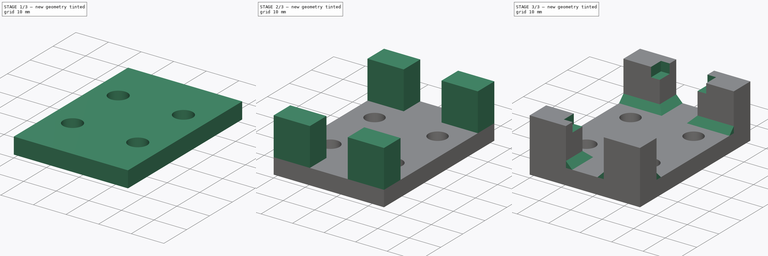
[diagram: build sequence overview — one tinted view per stage of 3, left to right]
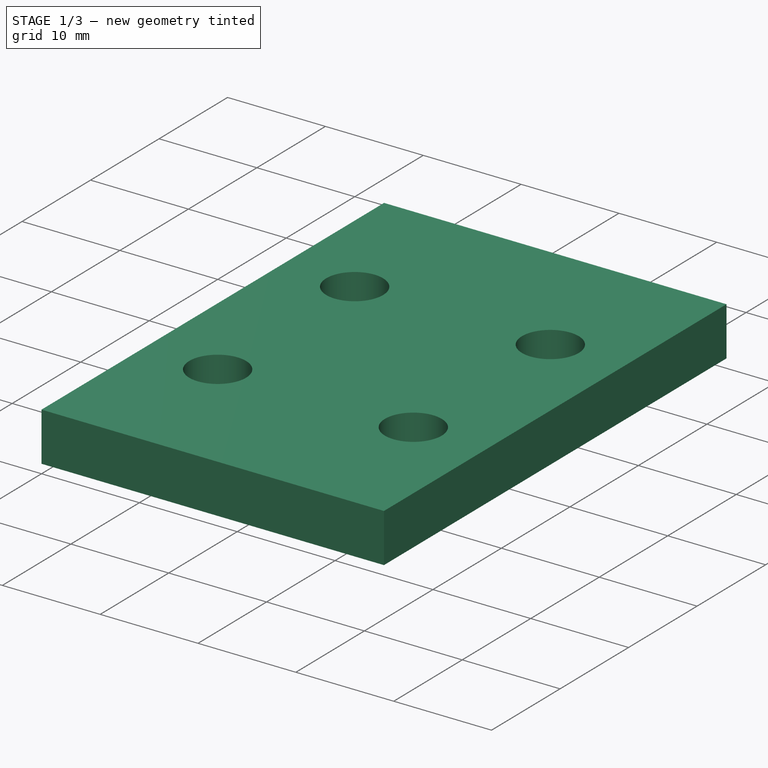
[diagram: stage 1 of 3 — iso view after this stage's code; geometry added in this stage tinted green]
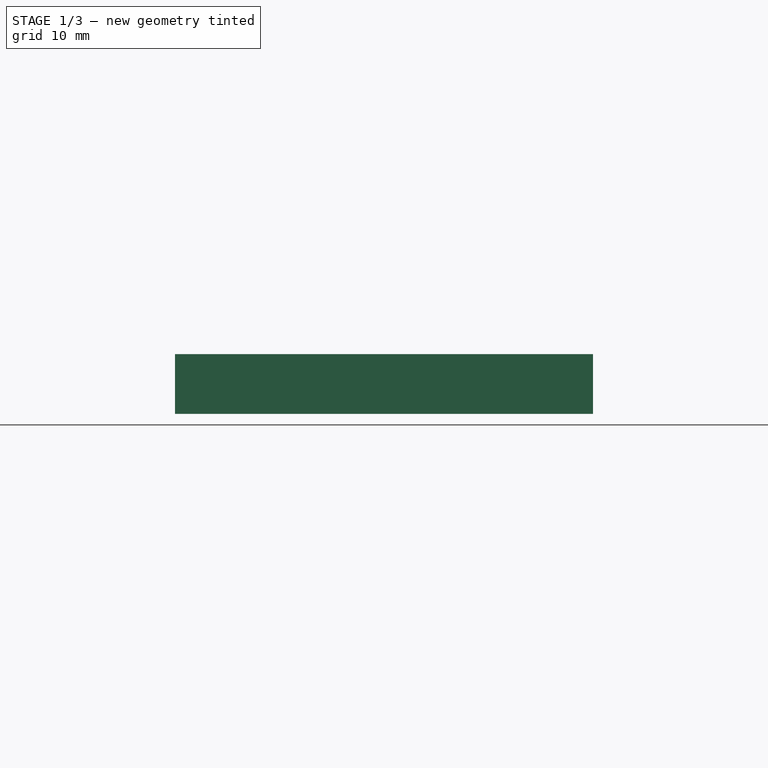
[diagram: stage 1 of 3 — front view after this stage's code; geometry added in this stage tinted green]
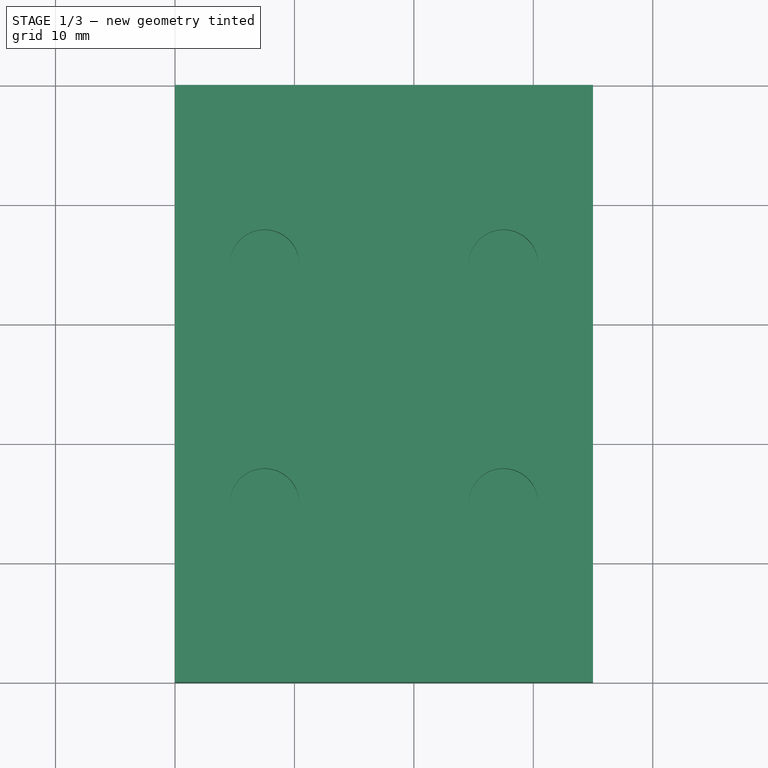
[diagram: stage 1 of 3 — top view after this stage's code; geometry added in this stage tinted green]
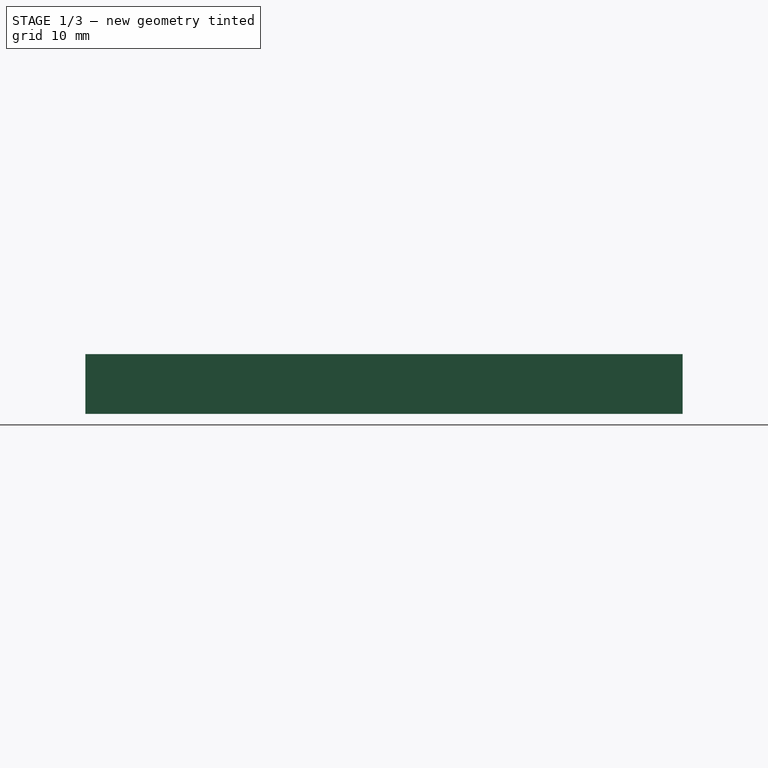
[diagram: stage 1 of 3 — right view after this stage's code; geometry added in this stage tinted green]
FCSTD DOCUMENT  (FreeCAD 0.16R6700 (Git))
Label: Arduino-Nano
License: All rights reserved
LicenseURL: http://en.wikipedia.org/wiki/All_rights_reserved
objects: Sketcher::SketchObject×5, PartDesign::Pocket×3, PartDesign::Pad×2, PartDesign::Chamfer×1
note: 16 computed .brp shape members not serialized (recipe doc carries the construction recipe); baked Part::Feature solids carry a one-line shape summary decoded from their .brp

FEATURE [Sketcher::SketchObject] Sketch
  sketch-geometry (4):
    g0: LineSegment StartX=0 StartY=50 StartZ=0 EndX=35 EndY=50 EndZ=0
    g1: LineSegment StartX=35 StartY=50 StartZ=0 EndX=35 EndY=0 EndZ=0
    g2: LineSegment StartX=35 StartY=0 StartZ=0 EndX=0 EndY=0 EndZ=0
    g3: LineSegment StartX=0 StartY=0 StartZ=0 EndX=0 EndY=50 EndZ=0
  constraints (11):
    c: Coincident(g0,g1)
    c: Coincident(g1,g2)
    c: Coincident(g2,g3)
    c: Coincident(g3,g0)
    c: Horizontal(g0)
    c: Horizontal(g2)
    c: Vertical(g1)
    c: Vertical(g3)
    c: DistanceX(g-1,g0) = 35
    c: DistanceY(g-1,g0) = 50
    c: Coincident(g2,g-1)
FEATURE [PartDesign::Pad] Pad
  Length = 5
  Length2 = 100
  Sketch = -> Sketch
  Type = 0
FEATURE [Sketcher::SketchObject] Sketch004
  Placement = pos=(0,0,5) rot=(0,0,1;0rad)
  Support = -> Pad [Face6]
  sketch-geometry (7):
    g0: Circle CenterX=7.5 CenterY=15 CenterZ=0 NormalX=0 NormalY=0 NormalZ=1 Radius=2.9
    g1: Circle CenterX=7.5 CenterY=35 CenterZ=0 NormalX=0 NormalY=0 NormalZ=1 Radius=2.9
    g2: LineSegment [constr] StartX=7.5 StartY=15 StartZ=0 EndX=7.5 EndY=35 EndZ=0
    g3: Circle CenterX=27.5 CenterY=15 CenterZ=0 NormalX=0 NormalY=0 NormalZ=1 Radius=2.9
    g4: LineSegment [constr] StartX=7.5 StartY=15 StartZ=0 EndX=27.5 EndY=15 EndZ=0
    g5: Circle CenterX=27.5 CenterY=35 CenterZ=0 NormalX=0 NormalY=0 NormalZ=1 Radius=2.9
    g6: LineSegment [constr] StartX=27.5 StartY=15 StartZ=0 EndX=27.5 EndY=35 EndZ=0
  constraints (18):
    c: Coincident(g0,g2)
    c: Coincident(g1,g2)
    c: Distance(g2) = 20
    c: Angle(g2) = 1.5708
    c: Coincident(g0,g4)
    c: Coincident(g3,g4)
    c: Equal(g4,g2)
    c: Perpendicular(g4,g2)
    c: Coincident(g3,g6)
    c: Coincident(g5,g6)
    c: Equal(g2,g6)
    c: Parallel(g6,g2)
    c: Equal(g0,g1)
    c: Equal(g3,g5)
    c: DistanceY(g-1,g0) = 15
    c: DistanceX(g-1,g0) = 7.5
    c: Radius(g0) = 2.9
    c: Radius(g3) = 2.9
FEATURE [PartDesign::Pocket] Pocket
  Length = 3
  Sketch = -> Sketch004
  Type = 0
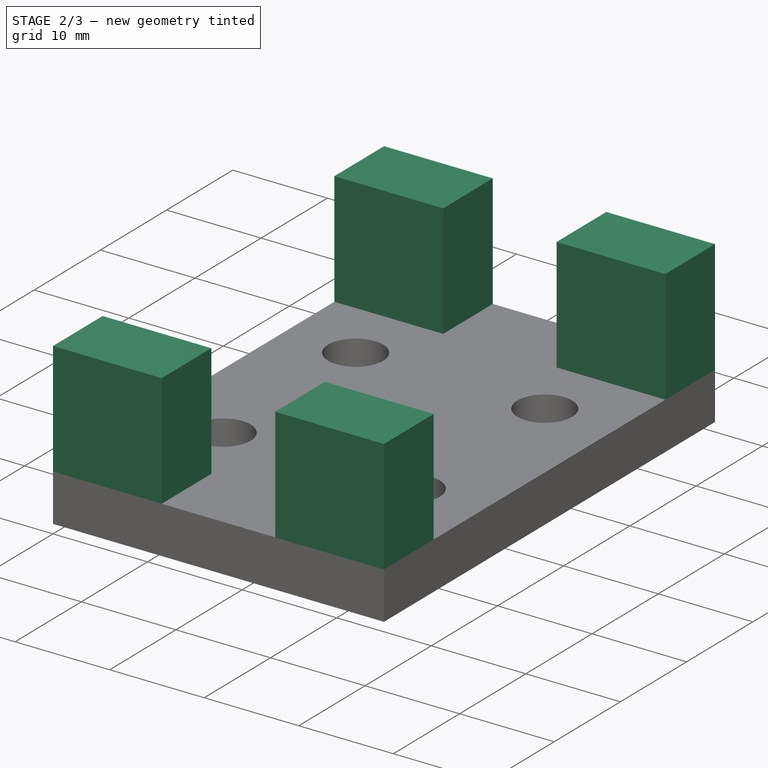
[diagram: stage 2 of 3 — iso view after this stage's code; geometry added in this stage tinted green]
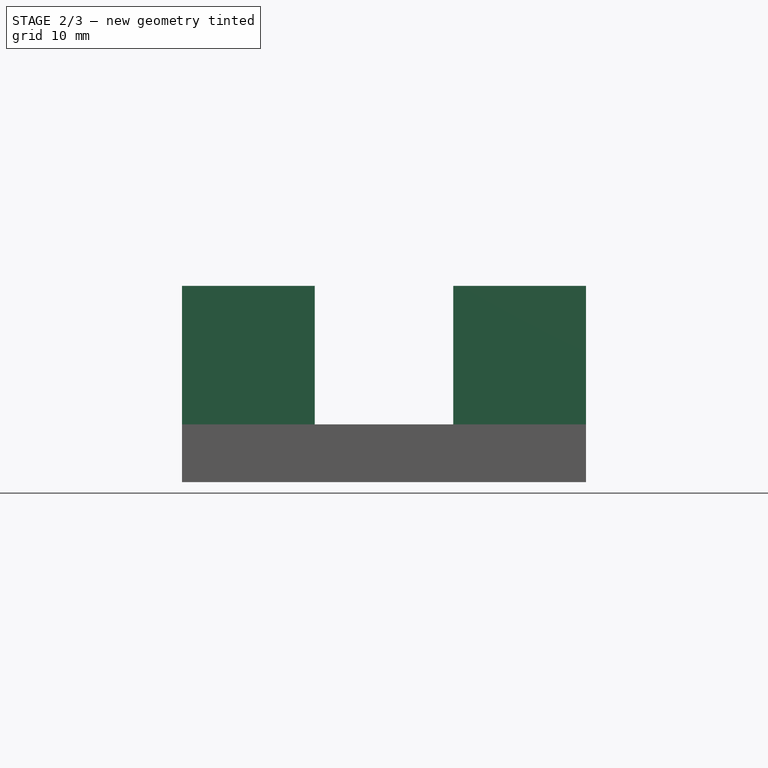
[diagram: stage 2 of 3 — front view after this stage's code; geometry added in this stage tinted green]
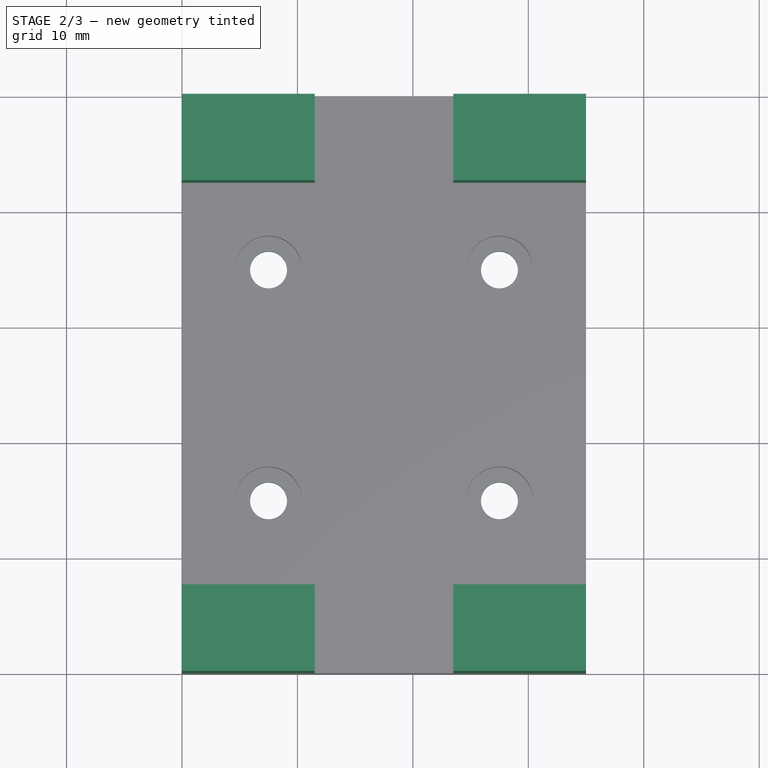
[diagram: stage 2 of 3 — top view after this stage's code; geometry added in this stage tinted green]
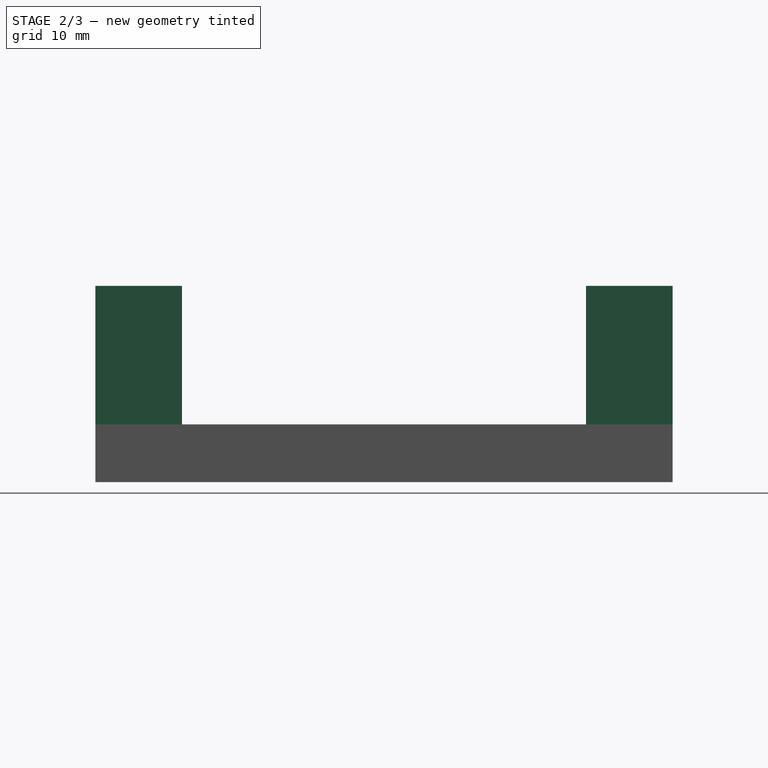
[diagram: stage 2 of 3 — right view after this stage's code; geometry added in this stage tinted green]
FEATURE [Sketcher::SketchObject] Sketch005
  Placement = pos=(0,0,2) rot=(0,0,1;0rad)
  Support = -> Pocket [Face14]
  sketch-geometry (7):
    g0: Circle CenterX=7.5 CenterY=15 CenterZ=0 NormalX=0 NormalY=0 NormalZ=1 Radius=1.6
    g1: Circle CenterX=7.5 CenterY=35 CenterZ=0 NormalX=0 NormalY=0 NormalZ=1 Radius=1.6
    g2: LineSegment [constr] StartX=7.5 StartY=15 StartZ=0 EndX=7.5 EndY=35 EndZ=0
    g3: Circle CenterX=27.5 CenterY=15 CenterZ=0 NormalX=0 NormalY=0 NormalZ=1 Radius=1.6
    g4: LineSegment [constr] StartX=7.5 StartY=15 StartZ=0 EndX=27.5 EndY=15 EndZ=0
    g5: Circle CenterX=27.5 CenterY=35 CenterZ=0 NormalX=0 NormalY=0 NormalZ=1 Radius=1.6
    g6: LineSegment [constr] StartX=27.5 StartY=15 StartZ=0 EndX=27.5 EndY=35 EndZ=0
  constraints (18):
    c: Radius(g0) = 1.6
    c: DistanceY(g-1,g0) = 15
    c: DistanceX(g-1,g0) = 7.5
    c: Equal(g0,g1) = 1.6
    c: Coincident(g0,g2)
    c: Coincident(g1,g2)
    c: Distance(g2) = 20
    c: Angle(g2) = 1.5708
    c: Equal(g0,g3) = 1.6
    c: Coincident(g0,g4)
    c: Coincident(g3,g4)
    c: Equal(g4,g2)
    c: Perpendicular(g4,g2)
    c: Equal(g0,g5) = 1.6
    c: Coincident(g3,g6)
    c: Coincident(g5,g6)
    c: Equal(g2,g6)
    c: Parallel(g6,g2)
FEATURE [PartDesign::Pocket] Pocket001
  Length = 5
  Sketch = -> Sketch005
  Type = 0
FEATURE [Sketcher::SketchObject] Sketch006
  Placement = pos=(0,0,5) rot=(0,0,1;0rad)
  Support = -> Pocket001 [Face5]
  sketch-geometry (16):
    g0: LineSegment StartX=0 StartY=0 StartZ=0 EndX=11.5 EndY=0 EndZ=0
    g1: LineSegment StartX=11.5 StartY=0 StartZ=0 EndX=11.5 EndY=7.5 EndZ=0
    g2: LineSegment StartX=11.5 StartY=7.5 StartZ=0 EndX=0 EndY=7.5 EndZ=0
    g3: LineSegment StartX=0 StartY=7.5 StartZ=0 EndX=0 EndY=0 EndZ=0
    g4: LineSegment StartX=0 StartY=42.5 StartZ=0 EndX=11.5 EndY=42.5 EndZ=0
    g5: LineSegment StartX=11.5 StartY=42.5 StartZ=0 EndX=11.5 EndY=50 EndZ=0
    g6: LineSegment StartX=11.5 StartY=50 StartZ=0 EndX=0 EndY=50 EndZ=0
    g7: LineSegment StartX=0 StartY=50 StartZ=0 EndX=0 EndY=42.5 EndZ=0
    g8: LineSegment StartX=23.5 StartY=0 StartZ=0 EndX=35 EndY=0 EndZ=0
    g9: LineSegment StartX=35 StartY=0 StartZ=0 EndX=35 EndY=7.5 EndZ=0
    g10: LineSegment StartX=35 StartY=7.5 StartZ=0 EndX=23.5 EndY=7.5 EndZ=0
    g11: LineSegment StartX=23.5 StartY=7.5 StartZ=0 EndX=23.5 EndY=0 EndZ=0
    g12: LineSegment StartX=23.5 StartY=42.5 StartZ=0 EndX=35 EndY=42.5 EndZ=0
    g13: LineSegment StartX=35 StartY=42.5 StartZ=0 EndX=35 EndY=50 EndZ=0
    g14: LineSegment StartX=35 StartY=50 StartZ=0 EndX=23.5 EndY=50 EndZ=0
    g15: LineSegment StartX=23.5 StartY=50 StartZ=0 EndX=23.5 EndY=42.5 EndZ=0
  constraints (47):
    c: Coincident(g0,g1)
    c: Coincident(g1,g2)
    c: Coincident(g2,g3)
    c: Coincident(g3,g0)
    c: Horizontal(g0)
    c: Horizontal(g2)
    c: Vertical(g1)
    c: Vertical(g3)
    c: Coincident(g4,g5)
    c: Coincident(g5,g6)
    c: Coincident(g6,g7)
    c: Coincident(g7,g4)
    c: Horizontal(g4)
    c: Horizontal(g6)
    c: Vertical(g5)
    c: Vertical(g7)
    c: Coincident(g8,g9)
    c: Coincident(g9,g10)
    c: Coincident(g10,g11)
    c: Coincident(g11,g8)
    c: Horizontal(g8)
    c: Horizontal(g10)
    c: Vertical(g9)
    c: Vertical(g11)
    c: Coincident(g12,g13)
    c: Coincident(g13,g14)
    c: Coincident(g14,g15)
    c: Coincident(g15,g12)
    c: Horizontal(g12)
    c: Horizontal(g14)
    c: Vertical(g13)
    c: Vertical(g15)
    c: PointOnObject(g7,g-2)
    c: Equal(g0,g8)
    c: Equal(g8,g12)
    c: Equal(g12,g4)
    c: Equal(g3,g7)
    c: Equal(g7,g15)
    c: Equal(g15,g11)
    c: Coincident(g0,g-1)
    c: DistanceX(g-1,g0) = 11.5
    c: DistanceY(g-1,g2) = 7.5
    c: DistanceX(g-1,g8) = 35
    c: DistanceX(g-1,g13) = 35
    c: DistanceY(g-1,g6) = 50
    c: DistanceY(g-1,g13) = 50
    c: PointOnObject(g8,g-1)
FEATURE [PartDesign::Pad] Pad001
  Length = 12
  Length2 = 100
  Sketch = -> Sketch006
  Type = 0
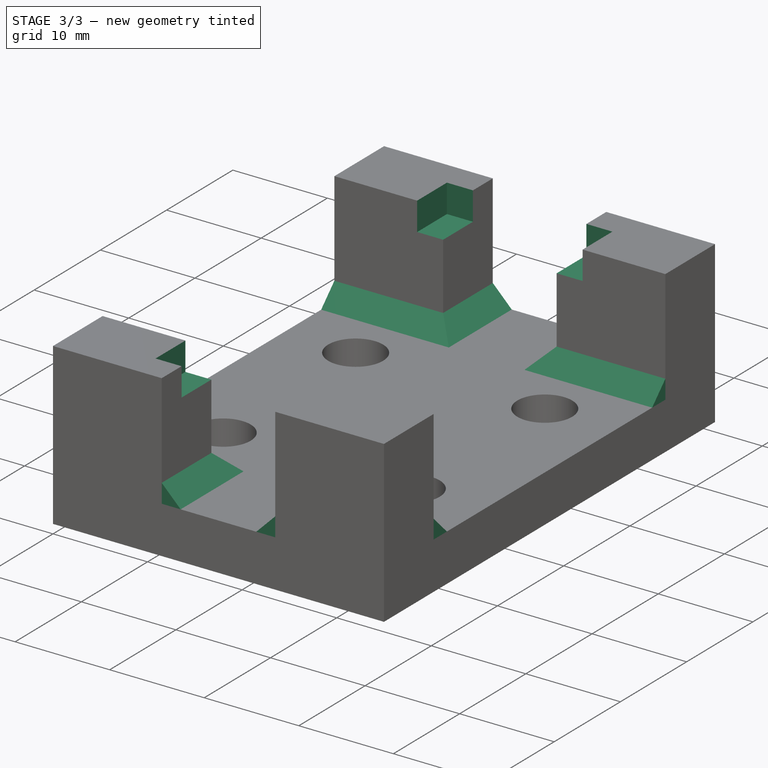
[diagram: stage 3 of 3 — iso view after this stage's code; geometry added in this stage tinted green]
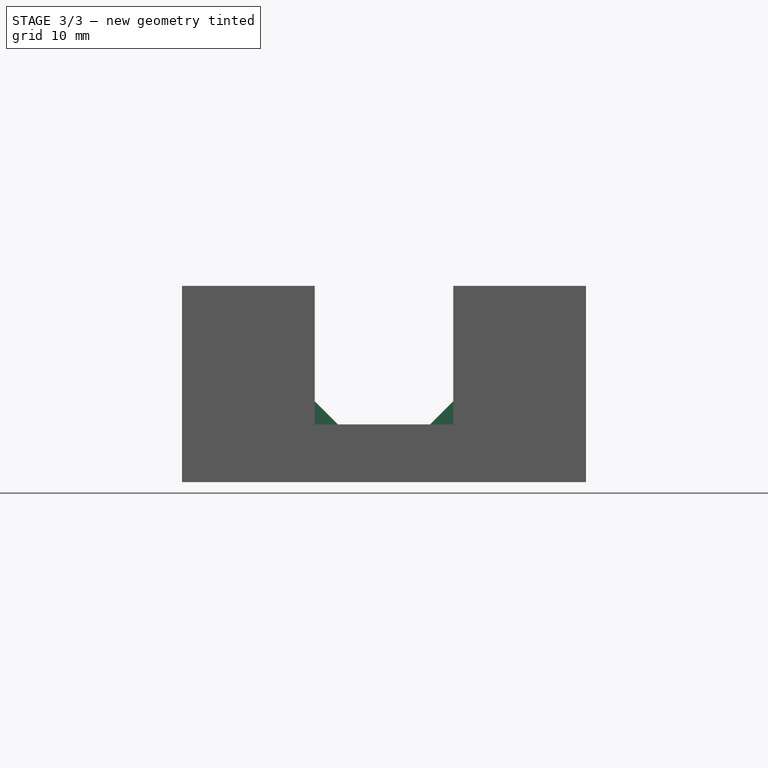
[diagram: stage 3 of 3 — front view after this stage's code; geometry added in this stage tinted green]
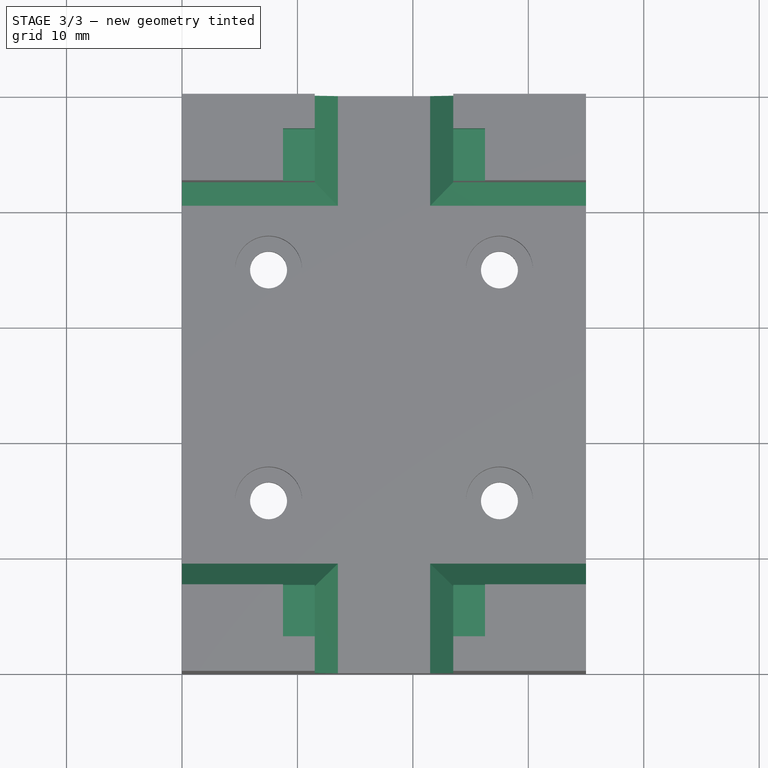
[diagram: stage 3 of 3 — top view after this stage's code; geometry added in this stage tinted green]
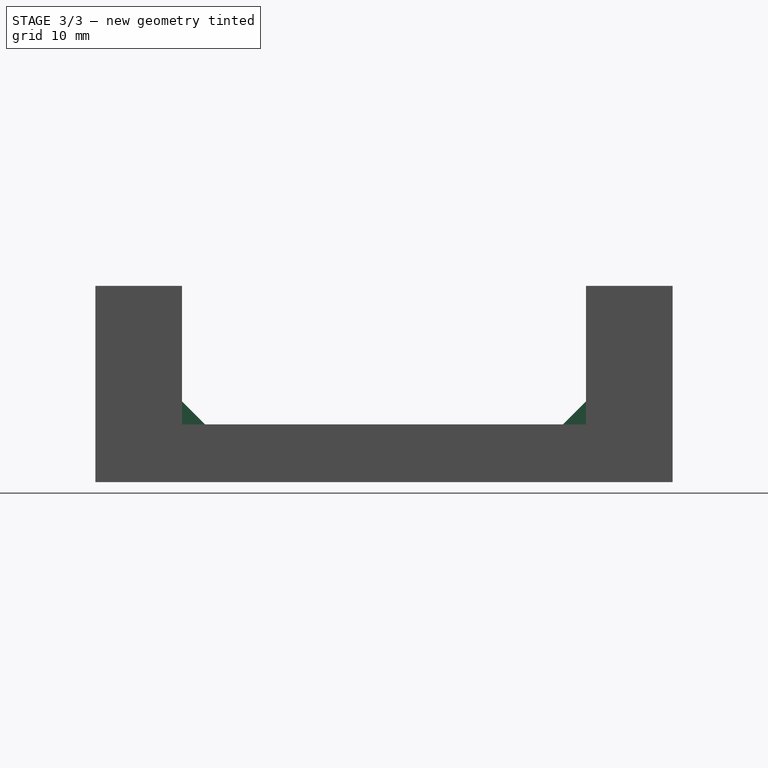
[diagram: stage 3 of 3 — right view after this stage's code; geometry added in this stage tinted green]
FEATURE [Sketcher::SketchObject] Sketch007
  Placement = pos=(0,0,17) rot=(0,0,1;0rad)
  Support = -> Pad001 [Face36]
  sketch-geometry (4):
    g0: LineSegment StartX=8.75 StartY=47 StartZ=0 EndX=26.25 EndY=47 EndZ=0
    g1: LineSegment StartX=26.25 StartY=47 StartZ=0 EndX=26.25 EndY=3 EndZ=0
    g2: LineSegment StartX=26.25 StartY=3 StartZ=0 EndX=8.75 EndY=3 EndZ=0
    g3: LineSegment StartX=8.75 StartY=3 StartZ=0 EndX=8.75 EndY=47 EndZ=0
  constraints (12):
    c: Coincident(g0,g1)
    c: Coincident(g1,g2)
    c: Coincident(g2,g3)
    c: Coincident(g3,g0)
    c: Horizontal(g0)
    c: Horizontal(g2)
    c: Vertical(g1)
    c: Vertical(g3)
    c: DistanceX(g2,g1) = 17.5
    c: DistanceX(g-1,g2) = 8.75
    c: DistanceY(g1,g0) = 44
    c: DistanceY(g-1,g1) = 3
FEATURE [PartDesign::Pocket] Pocket002
  Length = 3
  Sketch = -> Sketch007
  Type = 0
FEATURE [PartDesign::Chamfer] Chamfer
  Base = -> Pocket002 [Edge41,Edge40,Edge38,Edge39,Edge42,Edge43,Edge37,Edge36]
  Size = 2
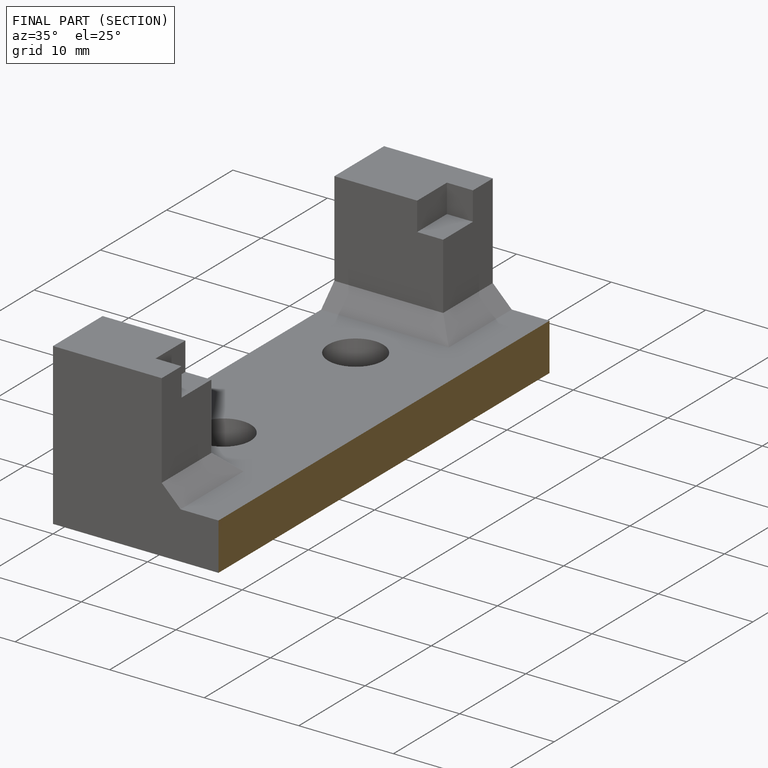
[diagram: finished part — half-section view (interior)]
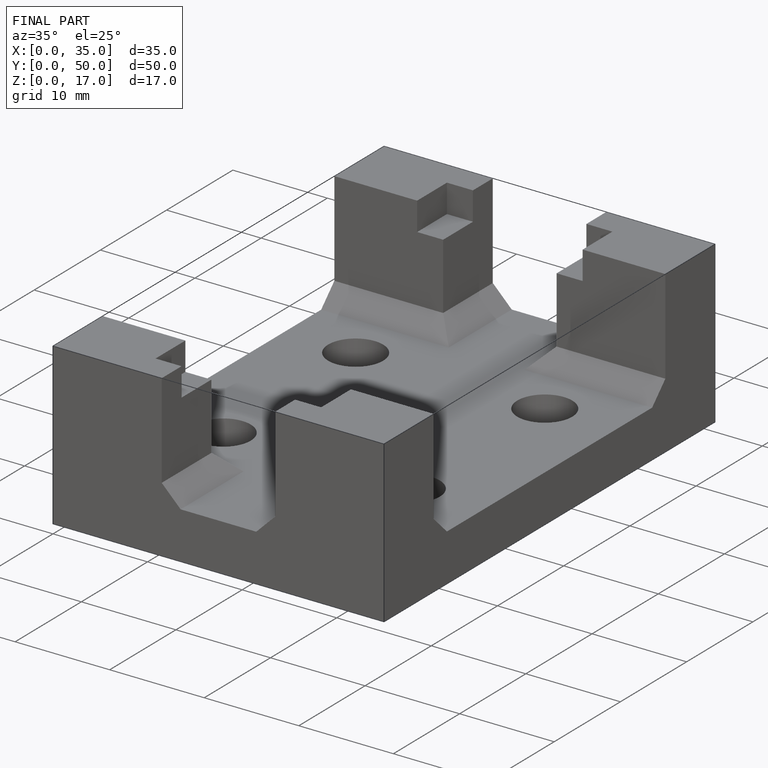
[diagram: finished part — iso view with bounding-box wireframe]
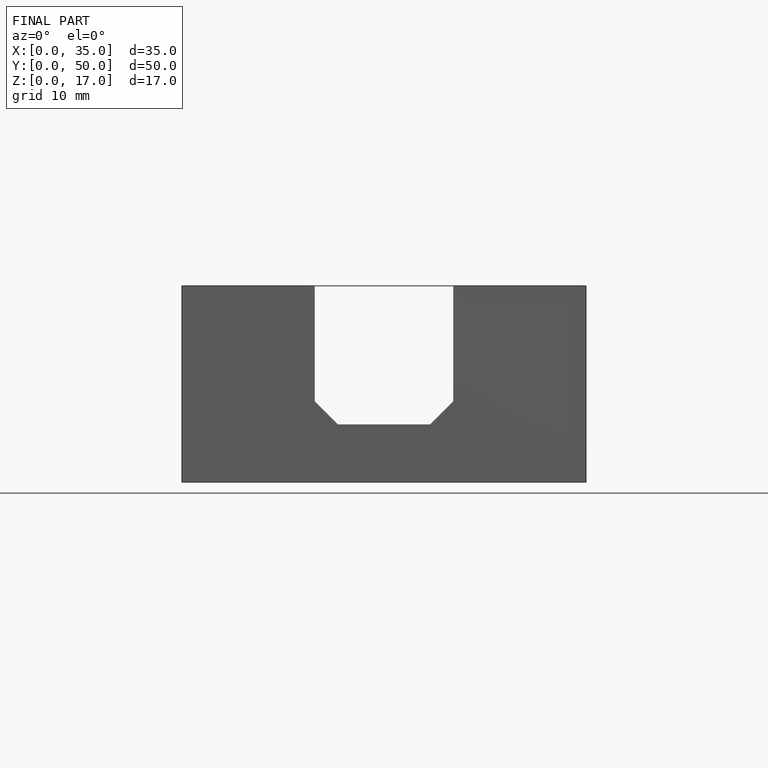
[diagram: finished part — front view with bounding-box wireframe]
